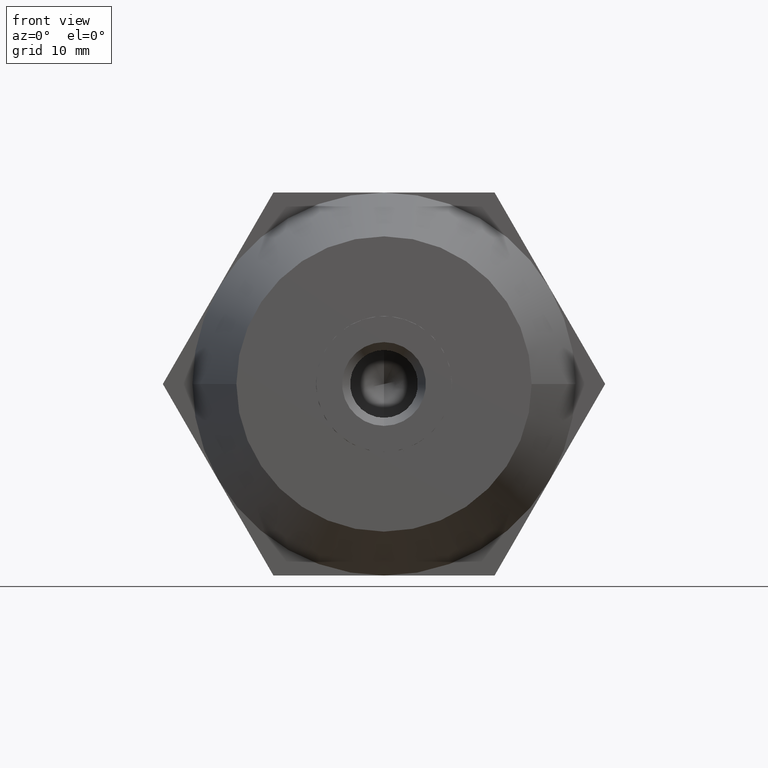
[diagram: clean part render]
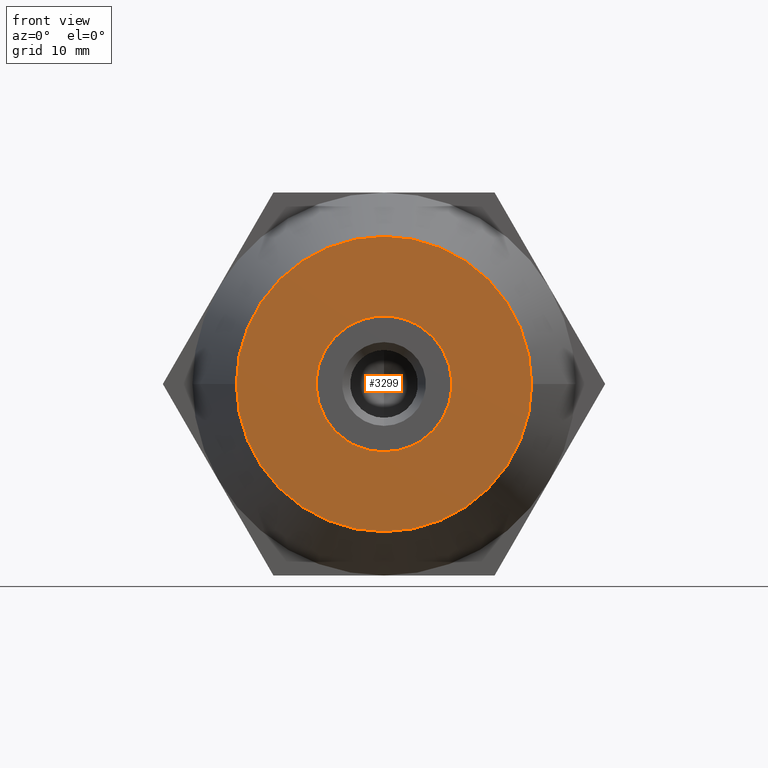
[diagram: same view with one face highlighted and labeled with its STEP entity id]
A machine part, front view. The second image highlights one B-rep face of the part: STEP entity #3299.
In plain terms, the highlighted planar face has unit normal (0, -1, 0).
Its self-contained STEP definition (entity closure, byte-faithful):
#46 = DIRECTION ( 'NONE',  ( -1.549594883678885000E-016, 1.000000000000000000, 0.0000000000000000000 ) ) ;
#58 = VECTOR ( 'NONE', #2251, 1000.000000000000000 ) ;
#69 = CARTESIAN_POINT ( 'NONE',  ( 3.892823573006260100, -27.50000000000000000, 7.567431838440749700 ) ) ;
#99 = CIRCLE ( 'NONE', #3248, 8.509999999999999800 ) ;
#157 = LINE ( 'NONE', #2133, #250 ) ;
#171 = CARTESIAN_POINT ( 'NONE',  ( 4.607176426993730100, -27.50000000000000000, 7.155000025894709700 ) ) ;
#179 = AXIS2_PLACEMENT_3D ( 'NONE', #230, #1132, #2332 ) ;
#183 = ORIENTED_EDGE ( 'NONE', *, *, #1785, .T. ) ;
#191 = CARTESIAN_POINT ( 'NONE',  ( -3.892823573006320100, -27.50000000000000000, -7.567431838440719500 ) ) ;
#207 = VERTEX_POINT ( 'NONE', #2187 ) ;
#212 = VERTEX_POINT ( 'NONE', #69 ) ;
#219 = EDGE_CURVE ( 'NONE', #945, #2334, #2283, .T. ) ;
#230 = CARTESIAN_POINT ( 'NONE',  ( 1.318705246010730000E-015, -27.50000000000000000, 0.0000000000000000000 ) ) ;
#250 = VECTOR ( 'NONE', #1142, 1000.000000000000000 ) ;
#310 = AXIS2_PLACEMENT_3D ( 'NONE', #1916, #46, #3457 ) ;
#339 = DIRECTION ( 'NONE',  ( 0.8660254037844387100, 1.341988534840307600E-016, 0.4999999999999998900 ) ) ;
#410 = CARTESIAN_POINT ( 'NONE',  ( 8.500000000000000000, -27.50000000000000000, 9.544116274330190100E-015 ) ) ;
#474 = CARTESIAN_POINT ( 'NONE',  ( -3.892823573006294800, -27.50000000000000000, 7.567431838440729300 ) ) ;
#538 = CARTESIAN_POINT ( 'NONE',  ( 1.318705246010730000E-015, -27.50000000000000000, 0.0000000000000000000 ) ) ;
#565 = CARTESIAN_POINT ( 'NONE',  ( -5.777789833161707600E-031, -27.50000000000000000, 8.509999999999999800 ) ) ;
#591 = CARTESIAN_POINT ( 'NONE',  ( 8.500000000000000000, -27.50000000000000000, -0.4124318125460635400 ) ) ;
#594 = DIRECTION ( 'NONE',  ( -1.549594883678885000E-016, 1.000000000000000000, -0.0000000000000000000 ) ) ;
#607 = LINE ( 'NONE', #690, #3584 ) ;
#615 = CARTESIAN_POINT ( 'NONE',  ( 1.318705246010730000E-015, -27.50000000000000000, 0.0000000000000000000 ) ) ;
#637 = EDGE_CURVE ( 'NONE', #1380, #2261, #1072, .T. ) ;
#690 = CARTESIAN_POINT ( 'NONE',  ( -9.625000000000000000, -27.50000000000000000, 15.37195091717380000 ) ) ;
#721 = CIRCLE ( 'NONE', #1025, 8.509999999999999800 ) ;
#764 = EDGE_CURVE ( 'NONE', #2414, #1592, #976, .T. ) ;
#807 = DIRECTION ( 'NONE',  ( 1.000000000000000000, 0.0000000000000000000, 0.0000000000000000000 ) ) ;
#827 = AXIS2_PLACEMENT_3D ( 'NONE', #2860, #3597, #1744 ) ;
#849 = DIRECTION ( 'NONE',  ( -1.549594883678885000E-016, 1.000000000000000000, -0.0000000000000000000 ) ) ;
#851 = VERTEX_POINT ( 'NONE', #1610 ) ;
#858 = EDGE_CURVE ( 'NONE', #212, #3258, #607, .T. ) ;
#873 = CIRCLE ( 'NONE', #2589, 8.509999999999999800 ) ;
#886 = VERTEX_POINT ( 'NONE', #3786 ) ;
#908 = FACE_BOUND ( 'NONE', #2229, .T. ) ;
#945 = VERTEX_POINT ( 'NONE', #2527 ) ;
#976 = CIRCLE ( 'NONE', #2399, 8.509999999999999800 ) ;
#1022 = CARTESIAN_POINT ( 'NONE',  ( 1.318705246010730000E-015, -27.50000000000000000, 0.0000000000000000000 ) ) ;
#1025 = AXIS2_PLACEMENT_3D ( 'NONE', #538, #3014, #3276 ) ;
#1072 = LINE ( 'NONE', #2166, #3399 ) ;
#1077 = VERTEX_POINT ( 'NONE', #191 ) ;
#1130 = EDGE_CURVE ( 'NONE', #207, #1077, #1454, .T. ) ;
#1132 = DIRECTION ( 'NONE',  ( -1.549594883678885000E-016, 1.000000000000000000, -0.0000000000000000000 ) ) ;
#1142 = DIRECTION ( 'NONE',  ( -0.8660254037844387100, -1.341988534840307600E-016, 0.4999999999999998900 ) ) ;
#1182 = DIRECTION ( 'NONE',  ( -1.549594883678885000E-016, 1.000000000000000000, -0.0000000000000000000 ) ) ;
#1228 = DIRECTION ( 'NONE',  ( 1.000000000000000000, 0.0000000000000000000, 8.881784197001252300E-016 ) ) ;
#1238 = CARTESIAN_POINT ( 'NONE',  ( -4.607176426993699900, -27.50000000000000000, 7.155000025894719500 ) ) ;
#1380 = VERTEX_POINT ( 'NONE', #1238 ) ;
#1404 = ORIENTED_EDGE ( 'NONE', *, *, #3523, .T. ) ;
#1419 = ORIENTED_EDGE ( 'NONE', *, *, #637, .T. ) ;
#1424 = CIRCLE ( 'NONE', #1791, 8.509999999999999800 ) ;
#1426 = VECTOR ( 'NONE', #3618, 1000.000000000000000 ) ;
#1454 = CIRCLE ( 'NONE', #179, 8.509999999999999800 ) ;
#1457 = CARTESIAN_POINT ( 'NONE',  ( -8.500000000000000000, -27.50000000000000000, 0.0000000000000000000 ) ) ;
#1528 = CARTESIAN_POINT ( 'NONE',  ( -8.500000000000000000, -27.50000000000000000, 0.4124318125459439700 ) ) ;
#1592 = VERTEX_POINT ( 'NONE', #3784 ) ;
#1598 = ORIENTED_EDGE ( 'NONE', *, *, #764, .T. ) ;
#1610 = CARTESIAN_POINT ( 'NONE',  ( -4.607176426993670600, -27.50000000000000000, -7.155000025894739900 ) ) ;
#1727 = DIRECTION ( 'NONE',  ( 1.000000000000000000, 0.0000000000000000000, -8.881784197001252300E-016 ) ) ;
#1744 = DIRECTION ( 'NONE',  ( 1.000000000000000000, 1.549594883678885000E-016, 0.0000000000000000000 ) ) ;
#1759 = CARTESIAN_POINT ( 'NONE',  ( 1.318705246010730000E-015, -27.50000000000000000, 0.0000000000000000000 ) ) ;
#1785 = EDGE_CURVE ( 'NONE', #851, #886, #873, .T. ) ;
#1791 = AXIS2_PLACEMENT_3D ( 'NONE', #1022, #3187, #1873 ) ;
#1842 = ORIENTED_EDGE ( 'NONE', *, *, #3851, .T. ) ;
#1873 = DIRECTION ( 'NONE',  ( 1.000000000000000000, 0.0000000000000000000, 2.664535259100375700E-015 ) ) ;
#1916 = CARTESIAN_POINT ( 'NONE',  ( 6.938893903907230000E-015, -27.50000000000000000, 0.0000000000000000000 ) ) ;
#2021 = AXIS2_PLACEMENT_3D ( 'NONE', #3412, #3083, #1228 ) ;
#2127 = CARTESIAN_POINT ( 'NONE',  ( -9.625000000000000000, -27.50000000000000000, -15.37195091717380000 ) ) ;
#2133 = CARTESIAN_POINT ( 'NONE',  ( -18.12500000000000000, -27.50000000000000000, 0.6495190528383260100 ) ) ;
#2153 = LINE ( 'NONE', #410, #58 ) ;
#2166 = CARTESIAN_POINT ( 'NONE',  ( -18.12500000000000000, -27.50000000000000000, -0.6495190528383310000 ) ) ;
#2187 = CARTESIAN_POINT ( 'NONE',  ( 3.892823573006325000, -27.50000000000000000, -7.567431838440719500 ) ) ;
#2198 = LINE ( 'NONE', #1457, #1426 ) ;
#2229 = EDGE_LOOP ( 'NONE', ( #3543, #3961, #3380, #1598, #2925, #2786, #3545, #183, #3153, #1404, #1419, #3479, #1842 ) ) ;
#2251 = DIRECTION ( 'NONE',  ( 3.534857879381550100E-016, 5.477597684421649500E-032, -1.000000000000000000 ) ) ;
#2261 = VERTEX_POINT ( 'NONE', #474 ) ;
#2283 = CIRCLE ( 'NONE', #310, 18.50000000000000000 ) ;
#2332 = DIRECTION ( 'NONE',  ( 1.000000000000000000, 0.0000000000000000000, 0.0000000000000000000 ) ) ;
#2334 = VERTEX_POINT ( 'NONE', #3861 ) ;
#2355 = PLANE ( 'NONE',  #827 ) ;
#2399 = AXIS2_PLACEMENT_3D ( 'NONE', #2673, #594, #807 ) ;
#2414 = VERTEX_POINT ( 'NONE', #591 ) ;
#2419 = VERTEX_POINT ( 'NONE', #565 ) ;
#2476 = EDGE_CURVE ( 'NONE', #1077, #851, #157, .T. ) ;
#2478 = VERTEX_POINT ( 'NONE', #1528 ) ;
#2491 = CIRCLE ( 'NONE', #2021, 8.509999999999999800 ) ;
#2527 = CARTESIAN_POINT ( 'NONE',  ( -18.49999999999999300, -27.50000000000000400, 0.0000000000000000000 ) ) ;
#2539 = FACE_OUTER_BOUND ( 'NONE', #3216, .T. ) ;
#2561 = DIRECTION ( 'NONE',  ( -1.549594883678885000E-016, 1.000000000000000000, 0.0000000000000000000 ) ) ;
#2586 = EDGE_CURVE ( 'NONE', #3258, #3836, #2491, .T. ) ;
#2589 = AXIS2_PLACEMENT_3D ( 'NONE', #1759, #849, #1727 ) ;
#2611 = EDGE_CURVE ( 'NONE', #3836, #2414, #2153, .T. ) ;
#2673 = CARTESIAN_POINT ( 'NONE',  ( 1.318705246010730000E-015, -27.50000000000000000, 0.0000000000000000000 ) ) ;
#2786 = ORIENTED_EDGE ( 'NONE', *, *, #1130, .T. ) ;
#2790 = VECTOR ( 'NONE', #3366, 1000.000000000000000 ) ;
#2859 = CARTESIAN_POINT ( 'NONE',  ( 6.938893903907230000E-015, -27.50000000000000000, 0.0000000000000000000 ) ) ;
#2860 = CARTESIAN_POINT ( 'NONE',  ( -18.50000000000000000, -27.50000000000000000, 0.0000000000000000000 ) ) ;
#2925 = ORIENTED_EDGE ( 'NONE', *, *, #3441, .T. ) ;
#3014 = DIRECTION ( 'NONE',  ( -1.549594883678885000E-016, 1.000000000000000000, -0.0000000000000000000 ) ) ;
#3074 = EDGE_CURVE ( 'NONE', #2334, #945, #3892, .T. ) ;
#3083 = DIRECTION ( 'NONE',  ( -1.549594883678885000E-016, 1.000000000000000000, -0.0000000000000000000 ) ) ;
#3153 = ORIENTED_EDGE ( 'NONE', *, *, #3383, .T. ) ;
#3187 = DIRECTION ( 'NONE',  ( -1.549594883678885000E-016, 1.000000000000000000, -0.0000000000000000000 ) ) ;
#3216 = EDGE_LOOP ( 'NONE', ( #3495, #3868 ) ) ;
#3248 = AXIS2_PLACEMENT_3D ( 'NONE', #615, #1182, #3352 ) ;
#3258 = VERTEX_POINT ( 'NONE', #171 ) ;
#3276 = DIRECTION ( 'NONE',  ( 1.000000000000000000, 0.0000000000000000000, -7.105427357601001900E-015 ) ) ;
#3299 = ADVANCED_FACE ( 'NONE', ( #2539, #908 ), #2355, .T. ) ;
#3318 = EDGE_CURVE ( 'NONE', #2261, #2419, #721, .T. ) ;
#3352 = DIRECTION ( 'NONE',  ( 1.000000000000000000, 0.0000000000000000000, 0.0000000000000000000 ) ) ;
#3364 = LINE ( 'NONE', #2127, #2790 ) ;
#3366 = DIRECTION ( 'NONE',  ( -0.8660254037844387100, -1.341988534840307600E-016, -0.4999999999999998900 ) ) ;
#3380 = ORIENTED_EDGE ( 'NONE', *, *, #2611, .T. ) ;
#3383 = EDGE_CURVE ( 'NONE', #886, #2478, #2198, .T. ) ;
#3399 = VECTOR ( 'NONE', #339, 1000.000000000000000 ) ;
#3412 = CARTESIAN_POINT ( 'NONE',  ( 1.318705246010730000E-015, -27.50000000000000000, 0.0000000000000000000 ) ) ;
#3441 = EDGE_CURVE ( 'NONE', #1592, #207, #3364, .T. ) ;
#3457 = DIRECTION ( 'NONE',  ( -1.000000000000000000, -1.875376730785737500E-016, 0.0000000000000000000 ) ) ;
#3479 = ORIENTED_EDGE ( 'NONE', *, *, #3318, .T. ) ;
#3495 = ORIENTED_EDGE ( 'NONE', *, *, #219, .F. ) ;
#3523 = EDGE_CURVE ( 'NONE', #2478, #1380, #99, .T. ) ;
#3543 = ORIENTED_EDGE ( 'NONE', *, *, #858, .T. ) ;
#3545 = ORIENTED_EDGE ( 'NONE', *, *, #2476, .T. ) ;
#3584 = VECTOR ( 'NONE', #3814, 1000.000000000000000 ) ;
#3597 = DIRECTION ( 'NONE',  ( 1.549594883678885000E-016, -1.000000000000000000, 0.0000000000000000000 ) ) ;
#3618 = DIRECTION ( 'NONE',  ( 0.0000000000000000000, 0.0000000000000000000, 1.000000000000000000 ) ) ;
#3773 = CARTESIAN_POINT ( 'NONE',  ( 8.500000000000000000, -27.50000000000000000, 0.4124318125460455500 ) ) ;
#3784 = CARTESIAN_POINT ( 'NONE',  ( 4.607176426993680400, -27.50000000000000000, -7.155000025894739900 ) ) ;
#3786 = CARTESIAN_POINT ( 'NONE',  ( -8.500000000000000000, -27.50000000000000000, -0.4124318125459439700 ) ) ;
#3814 = DIRECTION ( 'NONE',  ( 0.8660254037844387100, 1.341988534840309600E-016, -0.4999999999999998900 ) ) ;
#3820 = DIRECTION ( 'NONE',  ( -1.000000000000000000, -1.875376730785737500E-016, 0.0000000000000000000 ) ) ;
#3836 = VERTEX_POINT ( 'NONE', #3773 ) ;
#3851 = EDGE_CURVE ( 'NONE', #2419, #212, #1424, .T. ) ;
#3861 = CARTESIAN_POINT ( 'NONE',  ( 18.50000000000000700, -27.49999999999999600, 2.602374448188125100E-015 ) ) ;
#3868 = ORIENTED_EDGE ( 'NONE', *, *, #3074, .F. ) ;
#3892 = CIRCLE ( 'NONE', #3943, 18.50000000000000000 ) ;
#3943 = AXIS2_PLACEMENT_3D ( 'NONE', #2859, #2561, #3820 ) ;
#3961 = ORIENTED_EDGE ( 'NONE', *, *, #2586, .T. ) ;